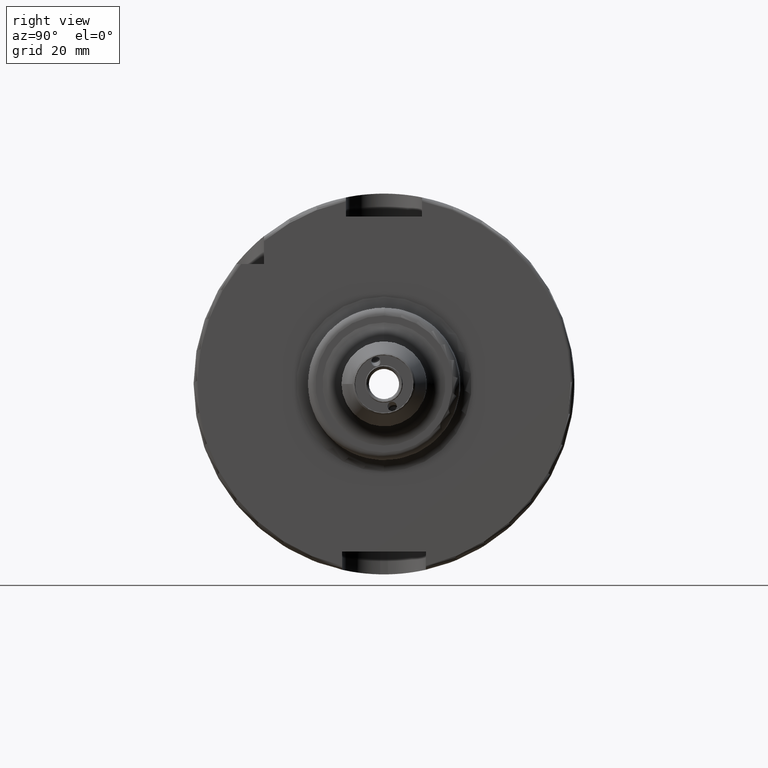
[diagram: clean part render]
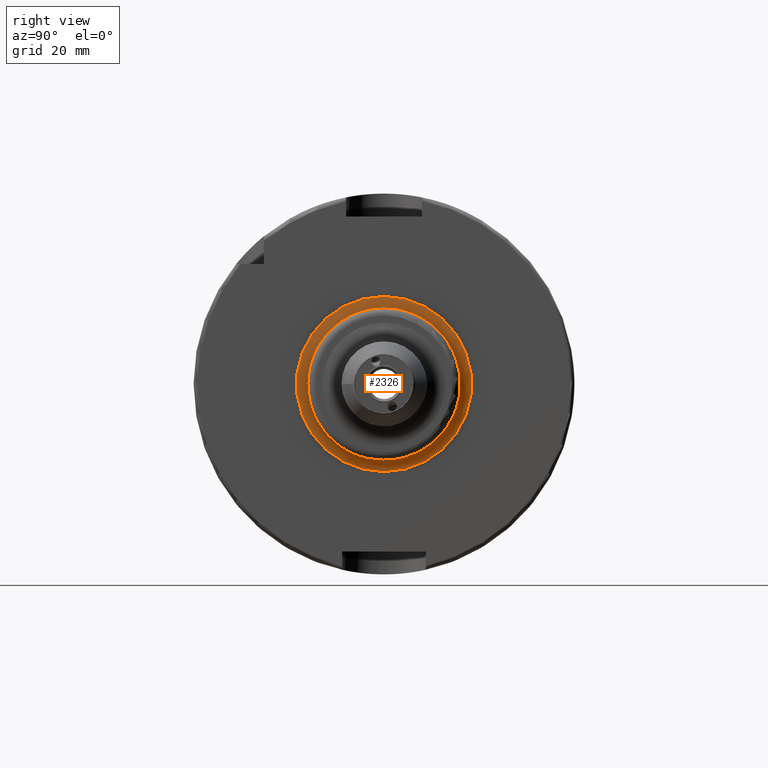
[diagram: same view with one face highlighted and labeled with its STEP entity id]
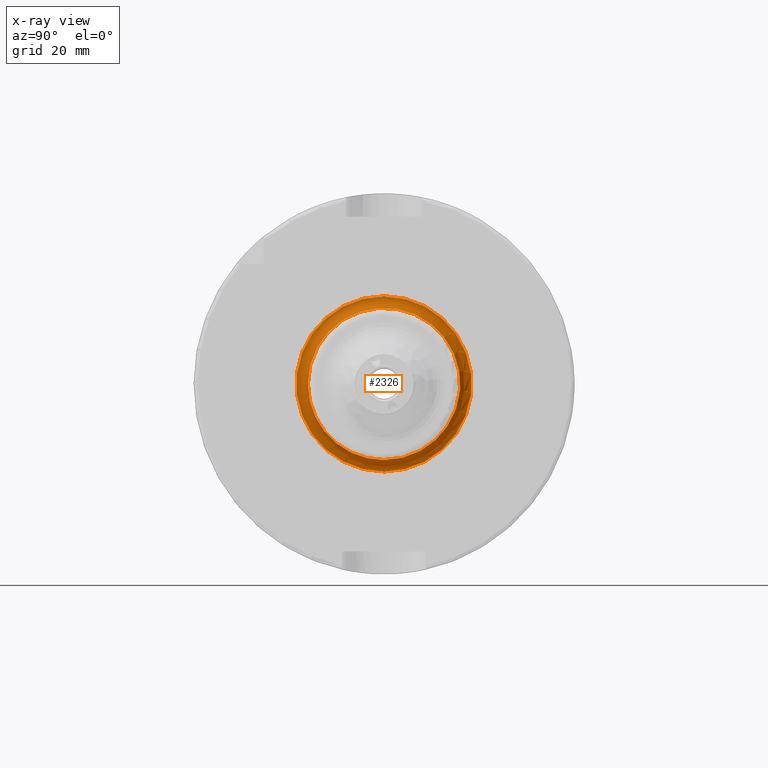
[diagram: x-ray of the same camera — body ghosted, the highlighted face saturated]
A machine part, right view. The second image highlights one B-rep face of the part: STEP entity #2326.
The next image is the same camera in x-ray: the body ghosted, the highlighted face saturated — about 0% of this face is hidden behind the body in this view.
In plain terms, the highlighted toroidal blend (fillet) surface has major radius 23 mm and minor (blend) radius 3 mm.
Its self-contained STEP definition (entity closure, byte-faithful):
#36=TOROIDAL_SURFACE('',#2519,23.,3.);
#492=FACE_OUTER_BOUND('',#632,.T.);
#632=EDGE_LOOP('',(#1657,#1658,#1659,#1660,#1661));
#768=CIRCLE('',#2488,20.);
#769=CIRCLE('',#2489,20.);
#788=CIRCLE('',#2520,3.);
#789=CIRCLE('',#2521,23.);
#935=VERTEX_POINT('',#3743);
#936=VERTEX_POINT('',#3745);
#955=VERTEX_POINT('',#3881);
#1193=EDGE_CURVE('',#936,#935,#768,.T.);
#1194=EDGE_CURVE('',#935,#936,#769,.T.);
#1222=EDGE_CURVE('',#936,#955,#788,.T.);
#1223=EDGE_CURVE('',#955,#955,#789,.T.);
#1657=ORIENTED_EDGE('',*,*,#1194,.T.);
#1658=ORIENTED_EDGE('',*,*,#1222,.T.);
#1659=ORIENTED_EDGE('',*,*,#1223,.T.);
#1660=ORIENTED_EDGE('',*,*,#1222,.F.);
#1661=ORIENTED_EDGE('',*,*,#1193,.T.);
#2326=ADVANCED_FACE('',(#492),#36,.F.);
#2488=AXIS2_PLACEMENT_3D('',#3746,#2823,#2824);
#2489=AXIS2_PLACEMENT_3D('',#3747,#2825,#2826);
#2519=AXIS2_PLACEMENT_3D('',#3880,#2890,#2891);
#2520=AXIS2_PLACEMENT_3D('',#3882,#2892,#2893);
#2521=AXIS2_PLACEMENT_3D('',#3883,#2894,#2895);
#2823=DIRECTION('center_axis',(-1.,0.,0.));
#2824=DIRECTION('ref_axis',(0.,-1.,-1.22464679914735E-16));
#2825=DIRECTION('center_axis',(-1.,0.,0.));
#2826=DIRECTION('ref_axis',(0.,-1.,-1.22464679914735E-16));
#2890=DIRECTION('center_axis',(-1.,0.,0.));
#2891=DIRECTION('ref_axis',(0.,0.,1.));
#2892=DIRECTION('center_axis',(0.,-1.,1.22464679914735E-16));
#2893=DIRECTION('ref_axis',(0.,-1.22464679914735E-16,-1.));
#2894=DIRECTION('center_axis',(1.,0.,0.));
#2895=DIRECTION('ref_axis',(0.,-1.,-1.22464679914735E-16));
#3743=CARTESIAN_POINT('',(32.,-20.,-2.44929359829471E-15));
#3745=CARTESIAN_POINT('',(32.,-2.44929359829471E-15,-20.));
#3746=CARTESIAN_POINT('Origin',(32.,0.,0.));
#3747=CARTESIAN_POINT('Origin',(32.,0.,0.));
#3880=CARTESIAN_POINT('Origin',(32.,0.,0.));
#3881=CARTESIAN_POINT('',(29.,-2.81668763803891E-15,-23.));
#3882=CARTESIAN_POINT('Origin',(32.,-2.81668763803891E-15,-23.));
#3883=CARTESIAN_POINT('Origin',(29.,0.,0.));